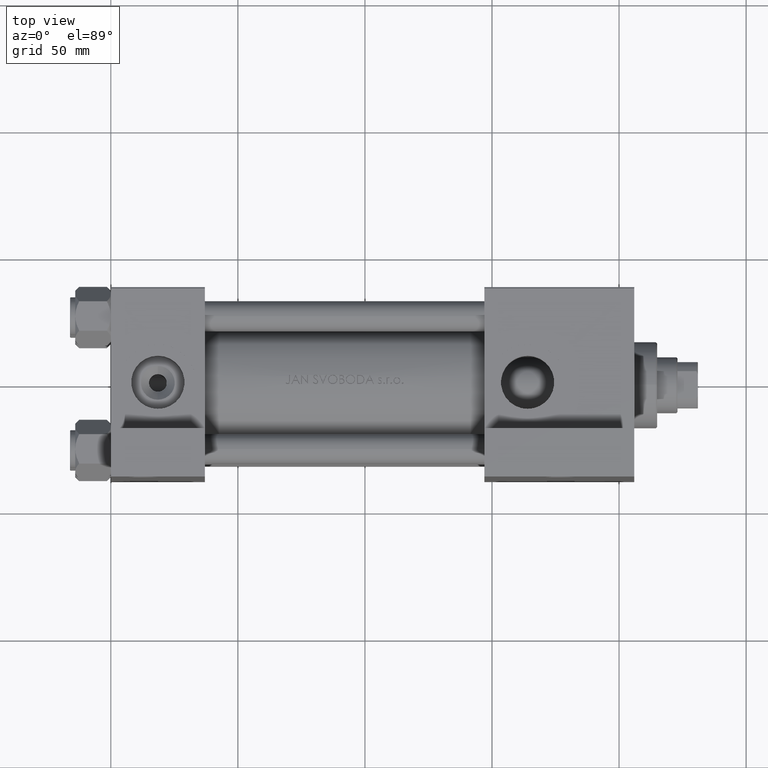
[diagram: clean part render]
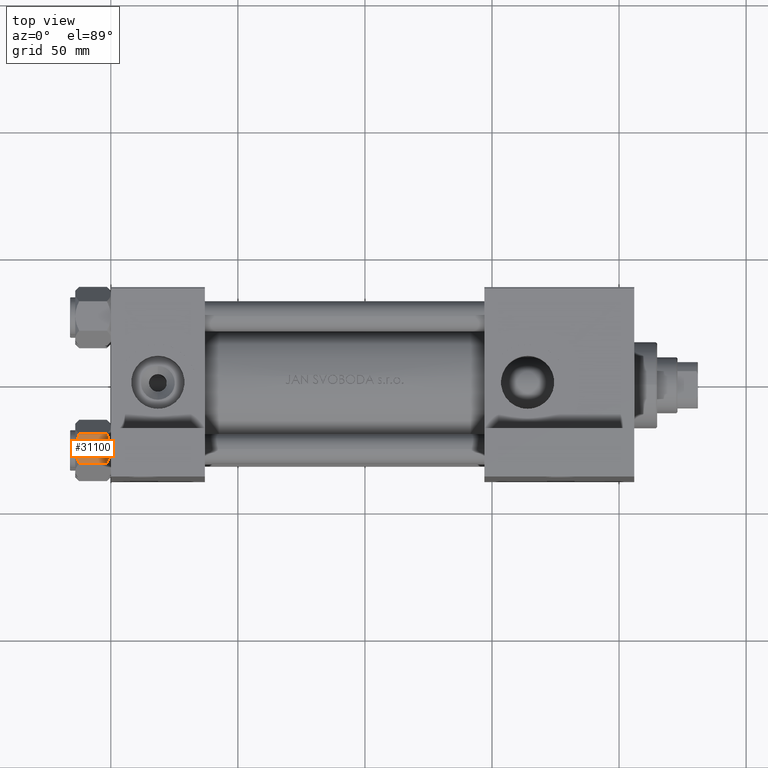
[diagram: same view with one face highlighted and labeled with its STEP entity id]
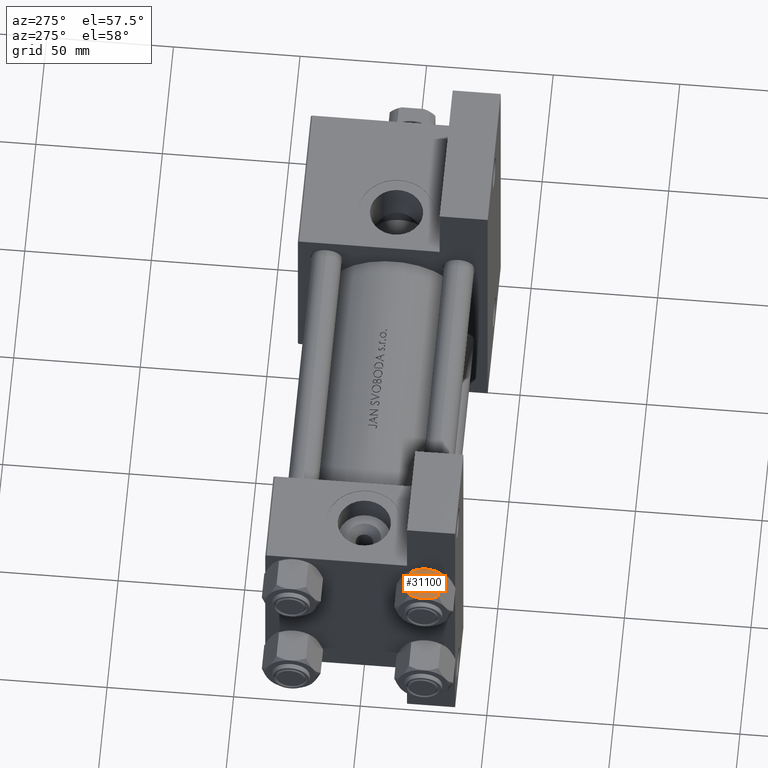
[diagram: same view with one face highlighted and labeled with its STEP entity id]
A machine part, top view. The second image highlights one B-rep face of the part: STEP entity #31100.
A second angle (auxiliary view) of the same face is appended — the face is thin or edge-on in the first view.
In plain terms, the highlighted planar face has unit normal (0, 0, -1).
Its self-contained STEP definition (entity closure, byte-faithful):
#50 = CARTESIAN_POINT ( 'NONE',  ( 5.810000000000000497, -10.06321519197517667, -14.00000000000000000 ) ) ;
#145 = CARTESIAN_POINT ( 'NONE',  ( 4.900668367960796523, -10.06321519197517489, -12.87844331629023209 ) ) ;
#634 = CARTESIAN_POINT ( 'NONE',  ( 5.359707691559676412, -10.06321519197517844, -12.66836134619534882 ) ) ;
#718 = CARTESIAN_POINT ( 'NONE',  ( -1.020132157807625450, -10.06321519197517667, 2.398797306624178560E-15 ) ) ;
#1839 = DIRECTION ( 'NONE',  ( -1.000000000000000000, -1.492877345935290102E-16, 0.000000000000000000 ) ) ;
#4050 = B_SPLINE_CURVE_WITH_KNOTS ( 'NONE', 3,
 ( #34776, #634, #145, #15351, #38020, #15098, #30291, #41749 ),
 .UNSPECIFIED., .F., .F.,
 ( 4, 2, 2, 4 ),
 ( 0.01467889604968879332, 0.01619420351931635110, 0.01770951098894391063, 0.02074012592819902620 ),
 .UNSPECIFIED. ) ;
#5736 = EDGE_CURVE ( 'NONE', #42062, #33340, #44829, .T. ) ;
#6302 = DIRECTION ( 'NONE',  ( -1.492877345935290102E-16, 1.000000000000000000, 0.000000000000000000 ) ) ;
#6778 = CARTESIAN_POINT ( 'NONE',  ( -2.508586450168039494, -10.06321519197517844, -13.70242473679676998 ) ) ;
#8230 = EDGE_LOOP ( 'NONE', ( #12913, #23287, #41044, #48460, #46711, #42578 ) ) ;
#8655 = CARTESIAN_POINT ( 'NONE',  ( -5.810000000000000497, -10.06321519197517844, -1.556784808024815225 ) ) ;
#9525 = VERTEX_POINT ( 'NONE', #34233 ) ;
#10512 = CARTESIAN_POINT ( 'NONE',  ( -0.5112014849988886223, -10.06321519197517489, -13.99019602057109068 ) ) ;
#10751 = VERTEX_POINT ( 'NONE', #30821 ) ;
#10758 = CARTESIAN_POINT ( 'NONE',  ( -4.908816193182379273, -10.06321519197517667, -12.89380709538398939 ) ) ;
#11512 = LINE ( 'NONE', #50, #41846 ) ;
#11596 = B_SPLINE_CURVE_WITH_KNOTS ( 'NONE', 3,
 ( #25001, #41160, #10512, #25729, #40916, #6778, #21996, #10758, #40196 ),
 .UNSPECIFIED., .F., .F.,
 ( 4, 2, 1, 2, 4 ),
 ( 0.02074012592819902620, 0.02149589804477579011, 0.02225167016135255749, 0.02376321439450608530, 0.02678630286081314441 ),
 .UNSPECIFIED. ) ;
#11695 = CARTESIAN_POINT ( 'NONE',  ( 1.502314598737159820E-15, -10.06321519197518022, 0.000000000000000000 ) ) ;
#12913 = ORIENTED_EDGE ( 'NONE', *, *, #49275, .F. ) ;
#15098 = CARTESIAN_POINT ( 'NONE',  ( 2.013954290287967019, -10.06321519197517489, -13.84298883202400532 ) ) ;
#15254 = DIRECTION ( 'NONE',  ( -0.000000000000000000, -0.000000000000000000, 1.000000000000000000 ) ) ;
#15351 = CARTESIAN_POINT ( 'NONE',  ( 3.958929922320422179, -10.06321519197517489, -13.25786014976459803 ) ) ;
#15518 = CARTESIAN_POINT ( 'NONE',  ( 4.908816193182379273, -10.06321519197517844, -1.106192904616004835 ) ) ;
#15763 = CARTESIAN_POINT ( 'NONE',  ( 3.960942496020602555, -10.06321519197517667, -0.7115728323610392980 ) ) ;
#15928 = CARTESIAN_POINT ( 'NONE',  ( -2.013954290287966575, -10.06321519197517844, -0.1570111679759964574 ) ) ;
#16134 = EDGE_CURVE ( 'NONE', #9525, #33340, #11512, .T. ) ;
#17760 = FACE_OUTER_BOUND ( 'NONE', #8230, .T. ) ;
#21996 = CARTESIAN_POINT ( 'NONE',  ( -3.960942496020602555, -10.06321519197517667, -13.28842716763895737 ) ) ;
#22441 = EDGE_CURVE ( 'NONE', #10751, #23124, #11596, .T. ) ;
#22993 = CARTESIAN_POINT ( 'NONE',  ( 0.5112014849988887333, -10.06321519197517667, -0.009803979428911684807 ) ) ;
#23124 = VERTEX_POINT ( 'NONE', #39941 ) ;
#23287 = ORIENTED_EDGE ( 'NONE', *, *, #16134, .T. ) ;
#25001 = CARTESIAN_POINT ( 'NONE',  ( 1.502314598737159820E-15, -10.06321519197518022, -14.00000000000000000 ) ) ;
#25250 = CARTESIAN_POINT ( 'NONE',  ( 5.810000000000000497, -10.06321519197517667, -14.00000000000000000 ) ) ;
#25609 = LINE ( 'NONE', #41774, #26934 ) ;
#25729 = CARTESIAN_POINT ( 'NONE',  ( -1.018274738099085086, -10.06321519197517667, -13.95177257919929126 ) ) ;
#26934 = VECTOR ( 'NONE', #41522, 1000.000000000000000 ) ;
#27232 = CARTESIAN_POINT ( 'NONE',  ( 0.2543996698847487137, -10.06321519197517844, 2.651777813537460036E-15 ) ) ;
#29966 = CARTESIAN_POINT ( 'NONE',  ( 5.810000000000000497, -10.06321519197517667, -1.556784808024813671 ) ) ;
#30291 = CARTESIAN_POINT ( 'NONE',  ( 1.020132157807625672, -10.06321519197517489, -14.00000000000000178 ) ) ;
#30569 = EDGE_CURVE ( 'NONE', #47332, #42062, #36036, .T. ) ;
#30627 = CARTESIAN_POINT ( 'NONE',  ( -4.900668367960797411, -10.06321519197517844, -1.121556683709773683 ) ) ;
#30821 = CARTESIAN_POINT ( 'NONE',  ( 1.502314598737159820E-15, -10.06321519197518022, -14.00000000000000000 ) ) ;
#31100 = ADVANCED_FACE ( 'NONE', ( #17760 ), #32962, .F. ) ;
#32962 = PLANE ( 'NONE',  #35886 ) ;
#33340 = VERTEX_POINT ( 'NONE', #36680 ) ;
#33955 = CARTESIAN_POINT ( 'NONE',  ( 1.502314598737159820E-15, -10.06321519197518022, 0.000000000000000000 ) ) ;
#34233 = CARTESIAN_POINT ( 'NONE',  ( 5.810000000000000497, -10.06321519197517667, -12.44321519197518633 ) ) ;
#34615 = CARTESIAN_POINT ( 'NONE',  ( -5.810000000000000497, -10.06321519197517844, -1.556784808024815225 ) ) ;
#34776 = CARTESIAN_POINT ( 'NONE',  ( 5.810000000000000497, -10.06321519197517667, -12.44321519197518633 ) ) ;
#35115 = CARTESIAN_POINT ( 'NONE',  ( -3.474497094393253604, -10.06321519197517844, -0.5726960901042740248 ) ) ;
#35701 = EDGE_CURVE ( 'NONE', #23124, #47332, #25609, .T. ) ;
#35886 = AXIS2_PLACEMENT_3D ( 'NONE', #25250, #6302, #1839 ) ;
#36036 = B_SPLINE_CURVE_WITH_KNOTS ( 'NONE', 3,
 ( #34615, #49289, #30627, #45813, #35115, #15928, #718, #11695 ),
 .UNSPECIFIED., .F., .F.,
 ( 4, 2, 2, 4 ),
 ( 0.01467889604968879505, 0.01619420351931635110, 0.01770951098894391063, 0.02074012592819902620 ),
 .UNSPECIFIED. ) ;
#36680 = CARTESIAN_POINT ( 'NONE',  ( 5.810000000000000497, -10.06321519197517667, -1.556784808024813671 ) ) ;
#37940 = CARTESIAN_POINT ( 'NONE',  ( 1.772424303831127812, -10.06321519197517844, -0.1338870921722363216 ) ) ;
#38020 = CARTESIAN_POINT ( 'NONE',  ( 3.474497094393254049, -10.06321519197517667, -13.42730390989572697 ) ) ;
#38430 = CARTESIAN_POINT ( 'NONE',  ( 1.018274738099085086, -10.06321519197517311, -0.04822742080070722276 ) ) ;
#39941 = CARTESIAN_POINT ( 'NONE',  ( -5.810000000000000497, -10.06321519197517844, -12.44321519197518455 ) ) ;
#40196 = CARTESIAN_POINT ( 'NONE',  ( -5.810000000000000497, -10.06321519197517844, -12.44321519197518455 ) ) ;
#40916 = CARTESIAN_POINT ( 'NONE',  ( -1.772424303831128478, -10.06321519197517489, -13.86611290782776251 ) ) ;
#41044 = ORIENTED_EDGE ( 'NONE', *, *, #5736, .F. ) ;
#41160 = CARTESIAN_POINT ( 'NONE',  ( -0.2543996698847483806, -10.06321519197517667, -14.00000000000000355 ) ) ;
#41522 = DIRECTION ( 'NONE',  ( -0.000000000000000000, -0.000000000000000000, 1.000000000000000000 ) ) ;
#41749 = CARTESIAN_POINT ( 'NONE',  ( 1.502314598737159820E-15, -10.06321519197518022, -14.00000000000000000 ) ) ;
#41774 = CARTESIAN_POINT ( 'NONE',  ( -5.810000000000000497, -10.06321519197517844, -14.00000000000000000 ) ) ;
#41846 = VECTOR ( 'NONE', #15254, 1000.000000000000000 ) ;
#42062 = VERTEX_POINT ( 'NONE', #47882 ) ;
#42578 = ORIENTED_EDGE ( 'NONE', *, *, #22441, .F. ) ;
#44829 = B_SPLINE_CURVE_WITH_KNOTS ( 'NONE', 3,
 ( #33955, #27232, #22993, #38430, #37940, #45149, #15763, #15518, #29966 ),
 .UNSPECIFIED., .F., .F.,
 ( 4, 2, 1, 2, 4 ),
 ( 0.02074012592819902620, 0.02149589804477579011, 0.02225167016135255402, 0.02376321439450608530, 0.02678630286081314441 ),
 .UNSPECIFIED. ) ;
#45149 = CARTESIAN_POINT ( 'NONE',  ( 2.508586450168040383, -10.06321519197517667, -0.2975752632032270806 ) ) ;
#45813 = CARTESIAN_POINT ( 'NONE',  ( -3.958929922320422179, -10.06321519197517667, -0.7421398502353990789 ) ) ;
#46711 = ORIENTED_EDGE ( 'NONE', *, *, #35701, .F. ) ;
#47332 = VERTEX_POINT ( 'NONE', #8655 ) ;
#47882 = CARTESIAN_POINT ( 'NONE',  ( 1.502314598737159820E-15, -10.06321519197518022, 0.000000000000000000 ) ) ;
#48460 = ORIENTED_EDGE ( 'NONE', *, *, #30569, .F. ) ;
#49275 = EDGE_CURVE ( 'NONE', #9525, #10751, #4050, .T. ) ;
#49289 = CARTESIAN_POINT ( 'NONE',  ( -5.359707691559672860, -10.06321519197517667, -1.331638653804653405 ) ) ;